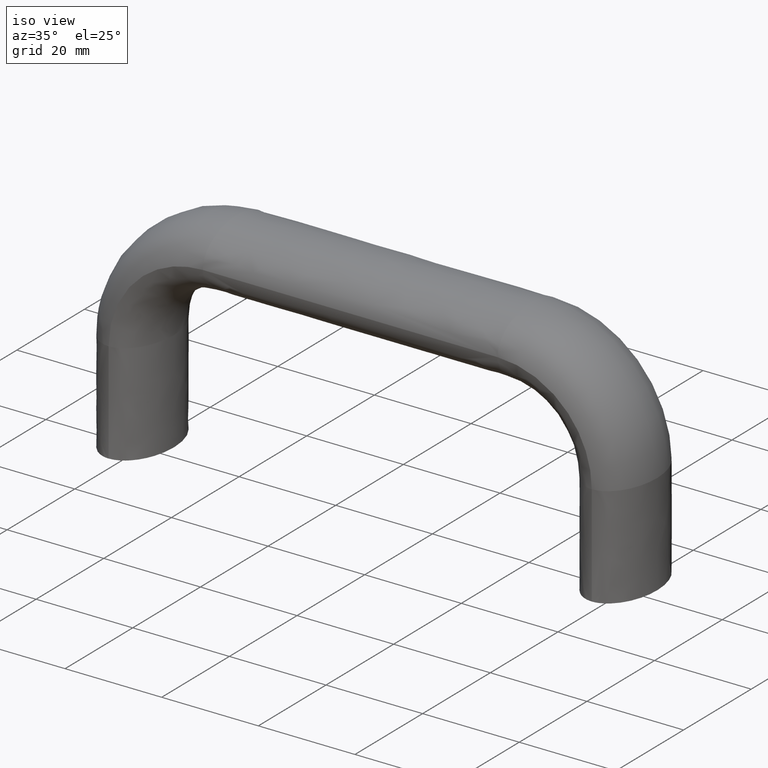
[diagram: clean part render]
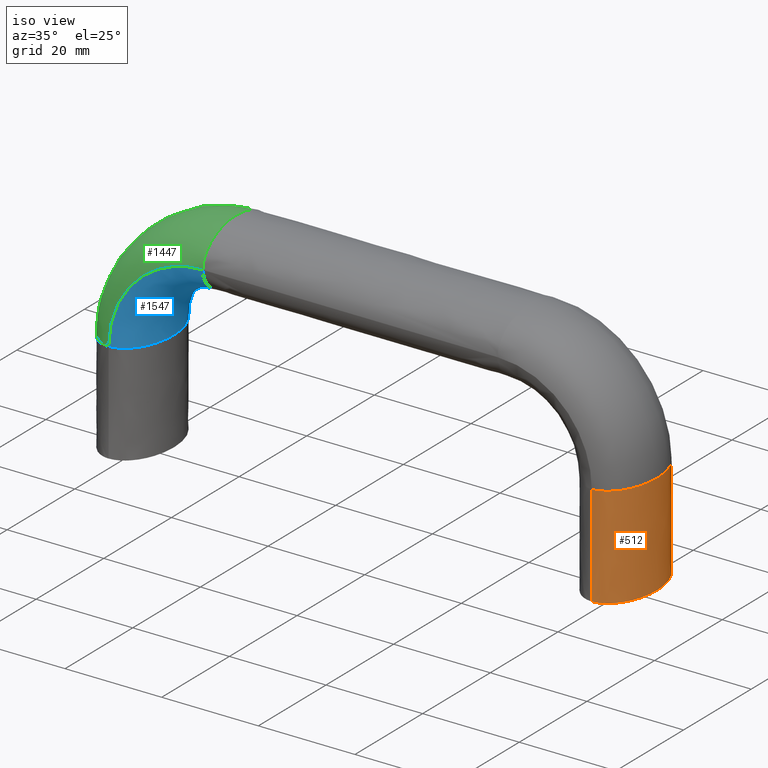
[diagram: same view with three faces highlighted in distinct colors, each labeled with its STEP entity id]
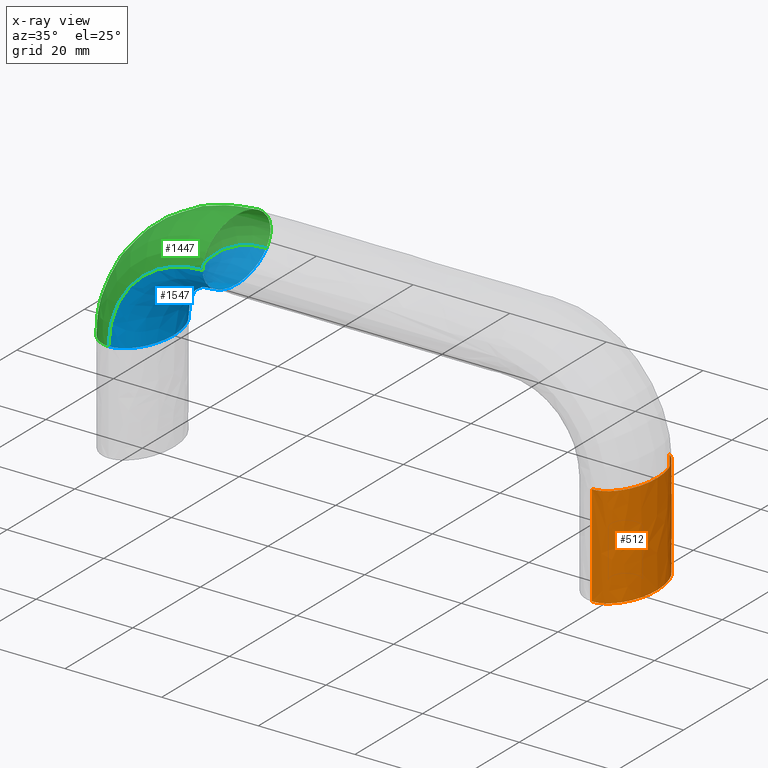
[diagram: x-ray of the same camera — body ghosted, the three highlighted faces saturated]
A machine part, iso view with three faces highlighted in distinct colors.
The next image is the same camera in x-ray (body ghosted, the three faces saturated) — at least one of them is partly hidden behind the body in this view.
Their STEP definitions:

[orange] entity #512 — the highlighted face is a freeform B-spline surface patch.
#416=CARTESIAN_POINT('',(102.685664287314590,9.096870563732855,21.105000702023069));
#417=CARTESIAN_POINT('',(103.393912250008300,8.602100189284771,21.105000702021730));
#418=CARTESIAN_POINT('',(104.046059659753990,7.917441528971150,21.105000702020519));
#419=CARTESIAN_POINT('',(105.799483026344600,5.219866576458202,21.105000702017371));
#420=CARTESIAN_POINT('',(106.500008461530400,2.617993877991495,21.105000702016159));
#421=CARTESIAN_POINT('',(106.500008461530400,-2.617993877991495,21.105000702016159));
#422=CARTESIAN_POINT('',(105.799483029704600,-5.219866585683334,21.105000702017371));
#423=CARTESIAN_POINT('',(103.372223946935310,-8.954109990528830,21.105000702021730));
#424=CARTESIAN_POINT('',(101.643380006030600,-10.036828661669171,21.105000702025009));
#425=CARTESIAN_POINT('',(99.912198060106107,-10.0,21.105000702028530));
#426=CARTESIAN_POINT('',(102.685762572474800,9.096870563732855,14.035000470713740));
#427=CARTESIAN_POINT('',(103.394012030205000,8.602100189284771,14.035000470805739));
#428=CARTESIAN_POINT('',(104.046160745582900,7.917441528971150,14.035000470888081));
#429=CARTESIAN_POINT('',(105.799587440925090,5.219866576458202,14.035000471102800));
#430=CARTESIAN_POINT('',(106.500114115188300,2.617993877991495,14.035000471185009));
#431=CARTESIAN_POINT('',(106.500114115188300,-2.617993877991495,14.035000471185009));
#432=CARTESIAN_POINT('',(105.799587444285090,-5.219866585683334,14.035000471102800));
#433=CARTESIAN_POINT('',(103.372323753533710,-8.954109990528833,14.035000470805560));
#434=CARTESIAN_POINT('',(101.643476196109010,-10.036828661669171,14.035000470581579));
#435=CARTESIAN_POINT('',(99.912290122131452,-10.0,14.035000470341419));
#436=CARTESIAN_POINT('',(102.685664754874200,9.096870563732855,6.965000230943952));
#437=CARTESIAN_POINT('',(103.393912724680110,8.602100189284771,6.965000230874455));
#438=CARTESIAN_POINT('',(104.046060140637000,7.917441528971148,6.965000230812259));
#439=CARTESIAN_POINT('',(105.799483523063100,5.219866576458202,6.965000230650062));
#440=CARTESIAN_POINT('',(106.500008964143400,2.617993877991495,6.965000230587966));
#441=CARTESIAN_POINT('',(106.500008964143400,-2.617993877991495,6.965000230587966));
#442=CARTESIAN_POINT('',(105.799483526423100,-5.219866585683334,6.965000230650062));
#443=CARTESIAN_POINT('',(103.372224421732800,-8.954109990528833,6.965000230874593));
#444=CARTESIAN_POINT('',(101.643380463623500,-10.036828661669171,6.965000231043766));
#445=CARTESIAN_POINT('',(99.912198498061215,-10.0,6.965000231225176));
#446=CARTESIAN_POINT('',(102.685665718488200,9.096870563732855,-0.105000001123976));
#447=CARTESIAN_POINT('',(103.393913702951810,8.602100189284771,-0.105000001122962));
#448=CARTESIAN_POINT('',(104.046061131709390,7.917441528971150,-0.105000001122055));
#449=CARTESIAN_POINT('',(105.799484546771500,5.219866576458202,-0.105000001119690));
#450=CARTESIAN_POINT('',(106.500010000000000,2.617993877991495,-0.105000001118785));
#451=CARTESIAN_POINT('',(106.500010000000000,-2.617993877991495,-0.105000001118785));
#452=CARTESIAN_POINT('',(105.799484550131500,-5.219866585683334,-0.105000001119690));
#453=CARTESIAN_POINT('',(103.372225400263300,-8.954109990528830,-0.105000001122964));
#454=CARTESIAN_POINT('',(101.643381406696700,-10.036828661669171,-0.105000001125431));
#455=CARTESIAN_POINT('',(99.912199400661862,-10.0,-0.105000001128076));
#456=B_SPLINE_SURFACE_WITH_KNOTS('',3,3,((#416,#426,#436,#446),(#417,#427,#437,#447),(#418,#428,#438,#448),(#419,#429,#439,#449),(#420,#430,#440,#450),(#421,#431,#441,#451),(#422,#432,#442,#452),(#423,#433,#443,#453),(#424,#434,#444,#454),(#425,#435,#445,#455)),.UNSPECIFIED.,.F.,.F.,.U.,(4,2,2,2,4),(4,4),(0.0,3.517538023977025,11.211160203697091,18.904782383417160,26.730734931155020),(0.0,21.210000706906950),.UNSPECIFIED.);
#457=CARTESIAN_POINT('',(102.765141615307000,9.039509780698342,21.0));
#458=VERTEX_POINT('',#457);
#459=CARTESIAN_POINT('',(100.000006999999900,-10.0,21.0));
#460=VERTEX_POINT('',#459);
#461=CARTESIAN_POINT('',(102.765141615307000,9.039509780698342,21.0));
#462=CARTESIAN_POINT('',(103.442845944197200,8.550386504931609,21.0));
#463=CARTESIAN_POINT('',(104.066757231072700,7.885599694327761,21.0));
#464=CARTESIAN_POINT('',(105.799484550144400,5.219866587632820,21.0));
#465=CARTESIAN_POINT('',(106.500010000000000,2.617993877991495,21.0));
#466=CARTESIAN_POINT('',(106.500010000000000,-2.617993877991495,21.0));
#467=CARTESIAN_POINT('',(105.799484550144400,-5.219866587632820,21.0));
#468=CARTESIAN_POINT('',(103.392921847921200,-8.922269036098131,21.0));
#469=CARTESIAN_POINT('',(101.701703806092600,-10.0,21.0));
#470=CARTESIAN_POINT('',(100.000006999999900,-10.0,21.0));
#471=B_SPLINE_CURVE_WITH_KNOTS('',3,(#461,#462,#463,#464,#465,#466,#467,#468,#469,#470),.UNSPECIFIED.,.F.,.U.,(4,2,2,2,4),(0.569999774214178,0.625000000000000,0.750000000000000,0.875000000000000,1.0),.UNSPECIFIED.);
#472=EDGE_CURVE('',#458,#460,#471,.T.);
#473=ORIENTED_EDGE('',*,*,#472,.T.);
#474=CARTESIAN_POINT('',(100.000006999999900,-10.0,2.244912E-030));
#475=VERTEX_POINT('',#474);
#476=CARTESIAN_POINT('',(100.000006999999900,-10.0,21.0));
#477=CARTESIAN_POINT('',(100.000096572231300,-10.0,14.000000002634369));
#478=CARTESIAN_POINT('',(100.000006999999900,-10.0,6.999999998021640));
#479=CARTESIAN_POINT('',(100.000006999999900,-10.0,9.022597E-030));
#480=B_SPLINE_CURVE_WITH_KNOTS('',3,(#476,#477,#478,#479),.UNSPECIFIED.,.F.,.U.,(4,4),(0.872154730273752,1.0),.UNSPECIFIED.);
#481=EDGE_CURVE('',#460,#475,#480,.T.);
#482=ORIENTED_EDGE('',*,*,#481,.T.);
#483=CARTESIAN_POINT('',(102.767739594506490,9.043088332074976,-6.905376E-016));
#484=VERTEX_POINT('',#483);
#485=CARTESIAN_POINT('',(102.767739594506490,9.043088332074976,-6.905376E-016));
#486=CARTESIAN_POINT('',(103.788922568860400,8.305512381048905,-8.662259E-016));
#487=CARTESIAN_POINT('',(104.593841249867590,7.067798396718776,-9.980209E-016));
#488=CARTESIAN_POINT('',(105.507974827157300,5.662145951503473,-1.147698E-015));
#489=CARTESIAN_POINT('',(106.003269452536700,3.824125051850070,-1.217831E-015));
#490=CARTESIAN_POINT('',(106.498190716571800,1.987489682987672,-1.287910E-015));
#491=CARTESIAN_POINT('',(106.498552664233500,-0.002017247322124,-1.267707E-015));
#492=CARTESIAN_POINT('',(106.498914339053000,-1.990024454081985,-1.247519E-015));
#493=CARTESIAN_POINT('',(106.004288505730600,-3.828133019815163,-1.140056E-015));
#494=CARTESIAN_POINT('',(105.510035529615290,-5.664855988638141,-1.032675E-015));
#495=CARTESIAN_POINT('',(104.595724214644310,-7.071730823092814,-8.543130E-016));
#496=CARTESIAN_POINT('',(103.682102122775700,-8.477545131857388,-6.760856E-016));
#497=CARTESIAN_POINT('',(102.487300935625400,-9.239002294893354,-4.539784E-016));
#498=CARTESIAN_POINT('',(101.293478468388900,-9.999835711236589,-2.320532E-016));
#499=CARTESIAN_POINT('',(100.000006999999900,-10.0,2.244912E-030));
#500=B_SPLINE_CURVE_WITH_KNOTS('',2,(#485,#486,#487,#488,#489,#490,#491,#492,#493,#494,#495,#496,#497,#498,#499),.UNSPECIFIED.,.F.,.U.,(3,2,2,2,2,2,2,3),(0.140017178578535,0.250000000000000,0.375000000000000,0.500000000000000,0.625000000000000,0.750000000000000,0.875000000000000,1.0),.UNSPECIFIED.);
#501=EDGE_CURVE('',#484,#475,#500,.T.);
#502=ORIENTED_EDGE('',*,*,#501,.F.);
#503=CARTESIAN_POINT('',(102.765141615307000,9.039509780698342,21.0));
#504=CARTESIAN_POINT('',(102.766103181637500,9.040702631156711,14.000000002996609));
#505=CARTESIAN_POINT('',(102.766873601440300,9.041895481616482,6.999999997749585));
#506=CARTESIAN_POINT('',(102.767739594506490,9.043088332074976,-6.905376E-016));
#507=B_SPLINE_CURVE_WITH_KNOTS('',3,(#503,#504,#505,#506),.UNSPECIFIED.,.F.,.U.,(4,4),(0.872154730273752,1.0),.UNSPECIFIED.);
#508=EDGE_CURVE('',#458,#484,#507,.T.);
#509=ORIENTED_EDGE('',*,*,#508,.F.);
#510=EDGE_LOOP('',(#473,#482,#502,#509));
#511=FACE_OUTER_BOUND('',#510,.T.);
#512=ADVANCED_FACE('',(#511),#456,.T.);

[blue] entity #1547 — the highlighted face is a freeform B-spline surface patch.
#1017=CARTESIAN_POINT('',(19.500000000000000,-10.0,40.499999999999972));
#1018=VERTEX_POINT('',#1017);
#1225=CARTESIAN_POINT('',(19.500000000000000,8.755444309278113,37.370781168316007));
#1226=VERTEX_POINT('',#1225);
#1227=CARTESIAN_POINT('',(19.500000000000000,-10.0,40.499999999999972));
#1228=CARTESIAN_POINT('',(19.500000000000000,-10.0,38.798303193907351));
#1229=CARTESIAN_POINT('',(19.500000000000000,-8.922269036098131,37.107085152078703));
#1230=CARTESIAN_POINT('',(19.500000000000000,-5.219866587632820,34.700522449855512));
#1231=CARTESIAN_POINT('',(19.500000000000000,-2.617993877991495,33.999997000000000));
#1232=CARTESIAN_POINT('',(19.500000000000000,2.617993877991495,33.999997000000000));
#1233=CARTESIAN_POINT('',(19.500000000000000,5.219866587632830,34.700522449855512));
#1234=CARTESIAN_POINT('',(19.500000000000000,7.737500252435607,36.336985087267422));
#1235=CARTESIAN_POINT('',(19.500000000000000,8.303690947313079,36.833402968655513));
#1236=CARTESIAN_POINT('',(19.500000000000000,8.755444309278113,37.370781168316007));
#1237=B_SPLINE_CURVE_WITH_KNOTS('',3,(#1227,#1228,#1229,#1230,#1231,#1232,#1233,#1234,#1235,#1236),.UNSPECIFIED.,.F.,.U.,(4,2,2,2,4),(0.0,0.125000000000000,0.250000000000000,0.375000000000000,0.419999999989627),.UNSPECIFIED.);
#1238=EDGE_CURVE('',#1018,#1226,#1237,.T.);
#1382=CARTESIAN_POINT('',(3.129218831684014,8.755444309278103,21.0));
#1383=VERTEX_POINT('',#1382);
#1384=CARTESIAN_POINT('',(3.129218831684014,8.755444309278103,21.0));
#1385=CARTESIAN_POINT('',(3.129243969506073,8.755444309434322,23.143280582164650));
#1386=CARTESIAN_POINT('',(3.555306488633653,8.755444309434322,25.285017438706689));
#1387=CARTESIAN_POINT('',(5.195434205766314,8.755444309434322,29.244636017413409));
#1388=CARTESIAN_POINT('',(6.408829193870410,8.755444309434322,31.060609949007048));
#1389=CARTESIAN_POINT('',(9.439390050992317,8.755444309434322,34.091170806130329));
#1390=CARTESIAN_POINT('',(11.255363982501500,8.755444309434322,35.304565794201046));
#1391=CARTESIAN_POINT('',(15.214982561378440,8.755444309434322,36.944693511399016));
#1392=CARTESIAN_POINT('',(17.356769465586289,8.755444309434322,37.361453043967067));
#1393=CARTESIAN_POINT('',(19.500000000000000,8.755444309278113,37.370781168316007));
#1394=B_SPLINE_CURVE_WITH_KNOTS('',3,(#1384,#1385,#1386,#1387,#1388,#1389,#1390,#1391,#1392,#1393),.UNSPECIFIED.,.F.,.U.,(4,2,2,2,4),(0.127845269726248,0.174463938317198,0.221082606908148,0.267701275499098,0.314319944090048),.UNSPECIFIED.);
#1395=EDGE_CURVE('',#1383,#1226,#1394,.T.);
#1415=CARTESIAN_POINT('',(3.747003E-014,-10.0,21.0));
#1416=VERTEX_POINT('',#1415);
#1430=CARTESIAN_POINT('',(4.996004E-014,-10.0,21.0));
#1431=CARTESIAN_POINT('',(0.000032792768325,-10.0,23.552961332610170));
#1432=CARTESIAN_POINT('',(0.507532855557295,-10.0,26.104083867147921));
#1433=CARTESIAN_POINT('',(2.461165376502601,-10.0,30.820569995090551));
#1434=CARTESIAN_POINT('',(3.906496666715043,-10.0,32.983661132990903));
#1435=CARTESIAN_POINT('',(7.516338867009705,-10.0,36.593503333284453));
#1436=CARTESIAN_POINT('',(9.679430004809840,-10.0,38.038834623457852));
#1437=CARTESIAN_POINT('',(14.395916132951729,-10.0,39.992467144482312));
#1438=CARTESIAN_POINT('',(16.947090050484519,-10.0,40.489775046380082));
#1439=CARTESIAN_POINT('',(19.500000000000000,-10.0,40.499999999999972));
#1440=B_SPLINE_CURVE_WITH_KNOTS('',3,(#1430,#1431,#1432,#1433,#1434,#1435,#1436,#1437,#1438,#1439),.UNSPECIFIED.,.F.,.U.,(4,2,2,2,4),(0.127845269726248,0.174463938317198,0.221082606908148,0.267701275499098,0.314319944090048),.UNSPECIFIED.);
#1441=EDGE_CURVE('',#1416,#1018,#1440,.T.);
#1448=CARTESIAN_POINT('',(-0.085767497650776,-10.0,20.846146436485959));
#1449=CARTESIAN_POINT('',(1.644732336006773,-10.035978100608860,20.859740162192551));
#1450=CARTESIAN_POINT('',(3.372698253159192,-8.953369468538748,20.873313983146410));
#1451=CARTESIAN_POINT('',(5.799476411370937,-5.219866585898124,20.892377236740099));
#1452=CARTESIAN_POINT('',(6.500001952613808,-2.617993877991495,20.897880127925092));
#1453=CARTESIAN_POINT('',(6.500001952613808,2.617993877991495,20.897880127925092));
#1454=CARTESIAN_POINT('',(5.799476406080711,5.219866572629823,20.892377236698749));
#1455=CARTESIAN_POINT('',(4.142798954994253,7.768601939193506,20.879363413302151));
#1456=CARTESIAN_POINT('',(3.620113162972910,8.356282155929316,20.875257520172660));
#1457=CARTESIAN_POINT('',(3.053984366400128,8.818689778524117,20.870810365946390));
#1458=CARTESIAN_POINT('',(-0.105954529843090,-10.0,23.461386517961859));
#1459=CARTESIAN_POINT('',(1.626327533426559,-10.035978100608860,23.243910806445211));
#1460=CARTESIAN_POINT('',(3.356073275493545,-8.953369468538748,23.026753535988941));
#1461=CARTESIAN_POINT('',(5.785351324650482,-5.219866585898124,22.721774994549978));
#1462=CARTESIAN_POINT('',(6.486598566360367,-2.617993877991495,22.633738410504080));
#1463=CARTESIAN_POINT('',(6.486598566360724,2.617993877991495,22.633738410504911));
#1464=CARTESIAN_POINT('',(5.785351319355358,5.219866572629824,22.721774995214219));
#1465=CARTESIAN_POINT('',(4.126967279248219,7.768601939193507,22.929973289303138));
#1466=CARTESIAN_POINT('',(3.603743081728719,8.356282155929316,22.995660360600070));
#1467=CARTESIAN_POINT('',(3.037031155426073,8.818689778524117,23.066807009458749));
#1468=CARTESIAN_POINT('',(0.904837241302363,-10.0,28.646528988361499));
#1469=CARTESIAN_POINT('',(2.547812648169906,-10.035978100608860,27.970920208124401));
#1470=CARTESIAN_POINT('',(4.188382235813213,-8.953369468538751,27.296300695687052));
#1471=CARTESIAN_POINT('',(6.492419749391019,-5.219866585898124,26.348856134852390));
#1472=CARTESIAN_POINT('',(7.157514360338914,-2.617993877991494,26.075362195743889));
#1473=CARTESIAN_POINT('',(7.157514360337174,2.617993877991494,26.075362195739778));
#1474=CARTESIAN_POINT('',(6.492419744367680,5.219866572629822,26.348856136914989));
#1475=CARTESIAN_POINT('',(4.919533082978546,7.768601939193506,26.995643744910240));
#1476=CARTESIAN_POINT('',(4.423283481938253,8.356282155929318,27.199706818168188));
#1477=CARTESIAN_POINT('',(3.885788111436856,8.818689778524119,27.420730583374230));
#1478=CARTESIAN_POINT('',(5.290331307233657,-9.999999999999996,35.209805945833217));
#1479=CARTESIAN_POINT('',(6.545825946293057,-10.035978100608860,33.954299078660107));
#1480=CARTESIAN_POINT('',(7.799482228133384,-8.953369468538748,32.700630601471381));
#1481=CARTESIAN_POINT('',(9.560133702599279,-5.219866585898124,30.939962020086579));
#1482=CARTESIAN_POINT('',(10.068371896046150,-2.617993877991495,30.431718893538140));
#1483=CARTESIAN_POINT('',(10.068371896045960,2.617993877991495,30.431718893542129));
#1484=CARTESIAN_POINT('',(9.560133698760282,5.219866572629823,30.939962023929780));
#1485=CARTESIAN_POINT('',(8.358197878175051,7.768601939193506,32.141909522815510));
#1486=CARTESIAN_POINT('',(7.978984187201655,8.356282155929318,32.521126900315473));
#1487=CARTESIAN_POINT('',(7.568252171456820,8.818689778524117,32.931862910827277));
#1488=CARTESIAN_POINT('',(9.636379464746863,-10.0,38.113917964908083));
#1489=CARTESIAN_POINT('',(10.507879284332230,-10.035978100608860,36.601818389966184));
#1490=CARTESIAN_POINT('',(11.378103000540801,-8.953369468538748,35.091932923764368));
#1491=CARTESIAN_POINT('',(12.600256690901791,-5.219866585898124,32.971429816159279));
#1492=CARTESIAN_POINT('',(12.953049498859210,-2.617993877991495,32.359315111176258));
#1493=CARTESIAN_POINT('',(12.953049498860979,2.617993877991495,32.359315111170083));
#1494=CARTESIAN_POINT('',(12.600256688240350,5.219866572629823,32.971429820773388));
#1495=CARTESIAN_POINT('',(11.765934665959451,7.768601939193506,34.419023895842983));
#1496=CARTESIAN_POINT('',(11.502704026039719,8.356282155929316,34.875743369318961));
#1497=CARTESIAN_POINT('',(11.217594984891930,8.818689778524117,35.370423058568150));
#1498=CARTESIAN_POINT('',(14.420927063298050,-10.0,40.095658331737582));
#1499=CARTESIAN_POINT('',(14.869688360654621,-10.035978100608860,38.408462161148179));
#1500=CARTESIAN_POINT('',(15.317792554254090,-8.953369468538748,36.723736486519172));
#1501=CARTESIAN_POINT('',(15.947116007145629,-5.219866585898124,34.357685479094883));
#1502=CARTESIAN_POINT('',(16.128779565345329,-2.617993877991495,33.674689727225342));
#1503=CARTESIAN_POINT('',(16.128779565345312,2.617993877991495,33.674689727234387));
#1504=CARTESIAN_POINT('',(15.947116005771440,5.219866572629823,34.357685484261758));
#1505=CARTESIAN_POINT('',(15.517498667114610,7.768601939193506,35.972906611440763));
#1506=CARTESIAN_POINT('',(15.381953345337740,8.356282155929316,36.482512830107730));
#1507=CARTESIAN_POINT('',(15.235142181045861,8.818689778524119,37.034474943687350));
#1508=CARTESIAN_POINT('',(17.038627739993871,-9.999999999999998,40.595330939088150));
#1509=CARTESIAN_POINT('',(17.256106376689580,-10.035978100608860,38.863518847138081));
#1510=CARTESIAN_POINT('',(17.473266200352480,-8.953369468538748,37.134311256048470));
#1511=CARTESIAN_POINT('',(17.778247740570979,-5.219866585898124,34.705883517520981));
#1512=CARTESIAN_POINT('',(17.866285030148291,-2.617993877991495,34.004905194642490));
#1513=CARTESIAN_POINT('',(17.866285030148191,2.617993877991495,34.004905194649517));
#1514=CARTESIAN_POINT('',(17.778247739907940,5.219866572629823,34.705883522815441));
#1515=CARTESIAN_POINT('',(17.570047398657358,7.768601939193506,36.363687085184878));
#1516=CARTESIAN_POINT('',(17.504359624064449,8.356282155929316,36.886737385876252));
#1517=CARTESIAN_POINT('',(17.433212163674408,8.818689778524117,37.453269467825493));
#1518=CARTESIAN_POINT('',(19.654137343829749,-10.0,40.586381532435631));
#1519=CARTESIAN_POINT('',(19.640518302920540,-10.035978100608860,38.855854535481193));
#1520=CARTESIAN_POINT('',(19.626919225077739,-8.953369468538748,37.127857514206362));
#1521=CARTESIAN_POINT('',(19.607820534291029,-5.219866585898124,34.701030209395711));
#1522=CARTESIAN_POINT('',(19.602307422885499,-2.617993877991495,34.000489125022057));
#1523=CARTESIAN_POINT('',(19.602307422885499,2.617993877991495,34.000489125021637));
#1524=CARTESIAN_POINT('',(19.607820534332561,5.219866572629823,34.701030214685993));
#1525=CARTESIAN_POINT('',(19.620858549474001,7.768601939193506,36.357741216460333));
#1526=CARTESIAN_POINT('',(19.624972078475519,8.356282155929316,36.880437059421041));
#1527=CARTESIAN_POINT('',(19.629427506105291,8.818689778524117,37.446576250670539));
#1528=B_SPLINE_SURFACE_WITH_KNOTS('',3,3,((#1448,#1458,#1468,#1478,#1488,#1498,#1508,#1518),(#1449,#1459,#1469,#1479,#1489,#1499,#1509,#1519),(#1450,#1460,#1470,#1480,#1490,#1500,#1510,#1520),(#1451,#1461,#1471,#1481,#1491,#1501,#1511,#1521),(#1452,#1462,#1472,#1482,#1492,#1502,#1512,#1522),(#1453,#1463,#1473,#1483,#1493,#1503,#1513,#1523),(#1454,#1464,#1474,#1484,#1494,#1504,#1514,#1524),(#1455,#1465,#1475,#1485,#1495,#1505,#1515,#1525),(#1456,#1466,#1476,#1486,#1496,#1506,#1516,#1526),(#1457,#1467,#1477,#1487,#1497,#1507,#1517,#1527)),.UNSPECIFIED.,.F.,.F.,.U.,(4,2,2,2,4),(4,1,1,2,4),(0.0,7.822887350544536,15.516521647786030,23.210155945027509,26.109117345018252),(0.0,7.846287878494902,15.538724845054020,23.231161811613141,31.077736555839738),.UNSPECIFIED.);
#1529=ORIENTED_EDGE('',*,*,#1238,.F.);
#1530=ORIENTED_EDGE('',*,*,#1441,.F.);
#1531=CARTESIAN_POINT('',(0.0,-10.0,21.0));
#1532=CARTESIAN_POINT('',(1.701696806092625,-10.0,21.0));
#1533=CARTESIAN_POINT('',(3.392914847921295,-8.922269036098131,21.0));
#1534=CARTESIAN_POINT('',(5.799477550144460,-5.219866587632820,21.0));
#1535=CARTESIAN_POINT('',(6.500003000000000,-2.617993877991495,21.0));
#1536=CARTESIAN_POINT('',(6.500003000000000,2.617993877991495,21.0));
#1537=CARTESIAN_POINT('',(5.799477550144460,5.219866587632830,21.0));
#1538=CARTESIAN_POINT('',(4.163014912732571,7.737500252435594,21.0));
#1539=CARTESIAN_POINT('',(3.666597031344490,8.303690947313058,21.0));
#1540=CARTESIAN_POINT('',(3.129218831684014,8.755444309278103,21.0));
#1541=B_SPLINE_CURVE_WITH_KNOTS('',3,(#1531,#1532,#1533,#1534,#1535,#1536,#1537,#1538,#1539,#1540),.UNSPECIFIED.,.F.,.U.,(4,2,2,2,4),(0.0,0.125000000000000,0.250000000000000,0.375000000000000,0.419999999989626),.UNSPECIFIED.);
#1542=EDGE_CURVE('',#1416,#1383,#1541,.T.);
#1543=ORIENTED_EDGE('',*,*,#1542,.T.);
#1544=ORIENTED_EDGE('',*,*,#1395,.T.);
#1545=EDGE_LOOP('',(#1529,#1530,#1543,#1544));
#1546=FACE_OUTER_BOUND('',#1545,.T.);
#1547=ADVANCED_FACE('',(#1546),#1528,.T.);

[green] entity #1447 — the highlighted face is a freeform B-spline surface patch.
#998=CARTESIAN_POINT('',(19.500000000000000,9.039509780698342,43.265134615307048));
#999=VERTEX_POINT('',#998);
#1017=CARTESIAN_POINT('',(19.500000000000000,-10.0,40.499999999999972));
#1018=VERTEX_POINT('',#1017);
#1019=CARTESIAN_POINT('',(19.500000000000000,9.039509780698342,43.265134615307048));
#1020=CARTESIAN_POINT('',(19.500000000000000,8.550386504931609,43.942838944197263));
#1021=CARTESIAN_POINT('',(19.500000000000000,7.885599694327761,44.566750231072788));
#1022=CARTESIAN_POINT('',(19.500000000000000,5.219866587632820,46.299477550144402));
#1023=CARTESIAN_POINT('',(19.500000000000000,2.617993877991495,47.000002999999893));
#1024=CARTESIAN_POINT('',(19.500000000000000,-2.617993877991495,47.000002999999893));
#1025=CARTESIAN_POINT('',(19.500000000000000,-5.219866587632820,46.299477550144402));
#1026=CARTESIAN_POINT('',(19.500000000000000,-8.922269036098131,43.892914847921247));
#1027=CARTESIAN_POINT('',(19.500000000000000,-10.0,42.201696806092599));
#1028=CARTESIAN_POINT('',(19.500000000000000,-10.0,40.499999999999972));
#1029=B_SPLINE_CURVE_WITH_KNOTS('',3,(#1019,#1020,#1021,#1022,#1023,#1024,#1025,#1026,#1027,#1028),.UNSPECIFIED.,.F.,.U.,(4,2,2,2,4),(0.569999774214178,0.625000000000000,0.750000000000000,0.875000000000000,1.0),.UNSPECIFIED.);
#1030=EDGE_CURVE('',#999,#1018,#1029,.T.);
#1225=CARTESIAN_POINT('',(19.500000000000000,8.755444309278113,37.370781168316007));
#1226=VERTEX_POINT('',#1225);
#1240=CARTESIAN_POINT('',(19.500000000000000,10.0,40.499999999999972));
#1241=VERTEX_POINT('',#1240);
#1242=CARTESIAN_POINT('',(19.500000000000000,8.755444309278113,37.370781168316007));
#1243=CARTESIAN_POINT('',(19.500000000000000,9.558561397071312,38.326120189762612));
#1244=CARTESIAN_POINT('',(19.500000000000000,10.0,39.410914043959473));
#1245=CARTESIAN_POINT('',(19.500000000000000,10.0,40.499999999999972));
#1246=B_SPLINE_CURVE_WITH_KNOTS('',3,(#1242,#1243,#1244,#1245),.UNSPECIFIED.,.F.,.U.,(4,4),(0.419999999989627,0.500000000000000),.UNSPECIFIED.);
#1247=EDGE_CURVE('',#1226,#1241,#1246,.T.);
#1249=CARTESIAN_POINT('',(19.500000000000000,10.0,40.499999999999972));
#1250=CARTESIAN_POINT('',(19.500000000000000,10.0,41.452947137659748));
#1251=CARTESIAN_POINT('',(19.500000000000000,9.662025750010745,42.402608156045282));
#1252=CARTESIAN_POINT('',(19.500000000000000,9.039509780698342,43.265134615307048));
#1253=B_SPLINE_CURVE_WITH_KNOTS('',3,(#1249,#1250,#1251,#1252),.UNSPECIFIED.,.F.,.U.,(4,4),(0.500000000000000,0.569999774214178),.UNSPECIFIED.);
#1254=EDGE_CURVE('',#1241,#999,#1253,.T.);
#1260=CARTESIAN_POINT('',(3.129218831498210,8.755444309434322,21.0));
#1261=CARTESIAN_POINT('',(2.173879809956092,9.558561397185795,21.0));
#1262=CARTESIAN_POINT('',(1.089085955899330,10.0,21.0));
#1263=CARTESIAN_POINT('',(-1.701696806092575,10.0,21.0));
#1264=CARTESIAN_POINT('',(-3.392914847921245,8.922269036098131,21.0));
#1265=CARTESIAN_POINT('',(-5.799477550144410,5.219866587632820,21.0));
#1266=CARTESIAN_POINT('',(-6.500002999999921,2.617993877991495,21.0));
#1267=CARTESIAN_POINT('',(-6.500002999999921,-2.617993877991495,21.0));
#1268=CARTESIAN_POINT('',(-5.799477550144410,-5.219866587632820,21.0));
#1269=CARTESIAN_POINT('',(-3.392914847921240,-8.922269036098131,21.0));
#1270=CARTESIAN_POINT('',(-1.701696806092575,-10.0,21.0));
#1271=CARTESIAN_POINT('',(4.998172E-014,-10.0,21.0));
#1272=CARTESIAN_POINT('',(3.129243969506073,8.755444309434322,23.143280582164650));
#1273=CARTESIAN_POINT('',(2.173907216333944,9.558561397185795,23.268354611356660));
#1274=CARTESIAN_POINT('',(1.089116008403330,10.0,23.410377008688489));
#1275=CARTESIAN_POINT('',(-1.701659731661370,10.0,23.775749338729302));
#1276=CARTESIAN_POINT('',(-3.392873347297845,8.922269036098131,23.997165453416450));
#1277=CARTESIAN_POINT('',(-5.799429588309250,5.219866587632820,24.312235272812948));
#1278=CARTESIAN_POINT('',(-6.499953125219970,2.617993877991495,24.403948830367550));
#1279=CARTESIAN_POINT('',(-6.499953125219970,-2.617993877991495,24.403948830367550));
#1280=CARTESIAN_POINT('',(-5.799429588309250,-5.219866587632820,24.312235272816299));
#1281=CARTESIAN_POINT('',(-3.392873347297845,-8.922269036098131,23.997165453416450));
#1282=CARTESIAN_POINT('',(-1.701659731661370,-10.0,23.775749338732599));
#1283=CARTESIAN_POINT('',(0.000032792768325,-10.0,23.552961332610170));
#1284=CARTESIAN_POINT('',(3.555306488633653,8.755444309434322,25.285017438706689));
#1285=CARTESIAN_POINT('',(2.624832387175422,9.558561397185795,25.535075412426149));
#1286=CARTESIAN_POINT('',(1.568272816321458,10.0,25.819017915488541));
#1287=CARTESIAN_POINT('',(-1.149873333135300,10.0,26.549499416627050));
#1288=CARTESIAN_POINT('',(-2.797073491776695,8.922269036098131,26.992172171655849));
#1289=CARTESIAN_POINT('',(-5.140999802187189,5.219866587632820,27.622084882618751));
#1290=CARTESIAN_POINT('',(-5.823292447839340,2.617993877991495,27.805445941444251));
#1291=CARTESIAN_POINT('',(-5.823292447839340,-2.617993877991495,27.805445941444251));
#1292=CARTESIAN_POINT('',(-5.140999802187189,-5.219866587632820,27.622084882614299));
#1293=CARTESIAN_POINT('',(-2.797073491777245,-8.922269036098131,26.992172171655849));
#1294=CARTESIAN_POINT('',(-1.149873333135296,-10.0,26.549499416622648));
#1295=CARTESIAN_POINT('',(0.507532855557295,-10.0,26.104083867147921));
#1296=CARTESIAN_POINT('',(5.195434205766314,8.755444309434322,29.244636017413409));
#1297=CARTESIAN_POINT('',(4.360671970000300,9.558561397185795,29.725762875366030));
#1298=CARTESIAN_POINT('',(3.412793863340103,10.0,30.272085643261619));
#1299=CARTESIAN_POINT('',(0.974245865817578,10.0,31.677576794811859));
#1300=CARTESIAN_POINT('',(-0.503517443259672,8.922269036098131,32.529306290032594));
#1301=CARTESIAN_POINT('',(-2.606339181427260,5.219866587632820,33.741296929246850));
#1302=CARTESIAN_POINT('',(-3.218448786024635,2.617993877991495,34.094094837640952));
#1303=CARTESIAN_POINT('',(-3.218448786024635,-2.617993877991495,34.094094837640952));
#1304=CARTESIAN_POINT('',(-2.606339181427260,-5.219866587632820,33.741296929251313));
#1305=CARTESIAN_POINT('',(-0.503517443259118,-8.922269036098131,32.529306290032594));
#1306=CARTESIAN_POINT('',(0.974245865817580,-10.0,31.677576794816300));
#1307=CARTESIAN_POINT('',(2.461165376502601,-10.0,30.820569995090551));
#1308=CARTESIAN_POINT('',(6.408829193870410,8.755444309434322,31.060609949007041));
#1309=CARTESIAN_POINT('',(5.644876259674172,9.558561397185795,31.647710415739681));
#1310=CARTESIAN_POINT('',(4.777402588948450,10.0,32.314366925800918));
#1311=CARTESIAN_POINT('',(2.545706163226765,10.0,34.029433331725251));
#1312=CARTESIAN_POINT('',(1.193295180017906,8.922269036098131,35.068765840203852));
#1313=CARTESIAN_POINT('',(-0.731153205563699,5.219866587632820,36.547711066804197));
#1314=CARTESIAN_POINT('',(-1.291340176712330,2.617993877991495,36.978216687630962));
#1315=CARTESIAN_POINT('',(-1.291340176712330,-2.617993877991495,36.978216687630962));
#1316=CARTESIAN_POINT('',(-0.731153205564807,-5.219866587632820,36.547711066804197));
#1317=CARTESIAN_POINT('',(1.193295180018460,-8.922269036098131,35.068765840203852));
#1318=CARTESIAN_POINT('',(2.545706163225655,-10.0,34.029433331725251));
#1319=CARTESIAN_POINT('',(3.906496666715043,-10.0,32.983661132990903));
#1320=CARTESIAN_POINT('',(9.439390050992316,8.755444309434322,34.091170806130329));
#1321=CARTESIAN_POINT('',(8.852289584259452,9.558561397185795,34.855123740326782));
#1322=CARTESIAN_POINT('',(8.185633074199123,10.0,35.722597411051588));
#1323=CARTESIAN_POINT('',(6.470566668274819,10.0,37.954293836773303));
#1324=CARTESIAN_POINT('',(5.431234159799510,8.922269036098131,39.306704819978847));
#1325=CARTESIAN_POINT('',(3.952288933195870,5.219866587632820,41.231153205563750));
#1326=CARTESIAN_POINT('',(3.521783312371335,2.617993877991495,41.791340176710200));
#1327=CARTESIAN_POINT('',(3.521783312371335,-2.617993877991495,41.791340176710200));
#1328=CARTESIAN_POINT('',(3.952288933196975,-5.219866587632820,41.231153205563750));
#1329=CARTESIAN_POINT('',(5.431234159798961,-8.922269036098131,39.306704819978812));
#1330=CARTESIAN_POINT('',(6.470566668275930,-10.0,37.954293836773303));
#1331=CARTESIAN_POINT('',(7.516338867009705,-10.0,36.593503333284453));
#1332=CARTESIAN_POINT('',(11.255363982501500,8.755444309434322,35.304565794201046));
#1333=CARTESIAN_POINT('',(10.774237124543060,9.558561397185795,36.139328029965739));
#1334=CARTESIAN_POINT('',(10.227914356639980,10.0,37.087206136625802));
#1335=CARTESIAN_POINT('',(8.822423205075241,10.0,39.525754134144250));
#1336=CARTESIAN_POINT('',(7.970693709847879,8.922269036098131,41.003517443214847));
#1337=CARTESIAN_POINT('',(6.758703070618110,5.219866587632820,43.106339181378551));
#1338=CARTESIAN_POINT('',(6.405905162224030,2.617993877991495,43.718448785975951));
#1339=CARTESIAN_POINT('',(6.405905162224030,-2.617993877991495,43.718448785975951));
#1340=CARTESIAN_POINT('',(6.758703070618110,-5.219866587632820,43.106339181378551));
#1341=CARTESIAN_POINT('',(7.970693709847879,-8.922269036098131,41.003517443214847));
#1342=CARTESIAN_POINT('',(8.822423205075241,-10.0,39.525754134135397));
#1343=CARTESIAN_POINT('',(9.679430004809840,-10.0,38.038834623457852));
#1344=CARTESIAN_POINT('',(15.214982561378440,8.755444309434322,36.944693511399016));
#1345=CARTESIAN_POINT('',(14.964924587664800,9.558561397185795,37.875167612858583));
#1346=CARTESIAN_POINT('',(14.680982084609891,10.0,38.931727183712667));
#1347=CARTESIAN_POINT('',(13.950500583485860,10.0,41.649873333173502));
#1348=CARTESIAN_POINT('',(13.507827828463700,8.922269036098131,43.297073491821550));
#1349=CARTESIAN_POINT('',(12.877915117516340,5.219866587632820,45.640999802235903));
#1350=CARTESIAN_POINT('',(12.694554058690819,2.617993877991495,46.323292447888100));
#1351=CARTESIAN_POINT('',(12.694554058690819,-2.617993877991495,46.323292447888100));
#1352=CARTESIAN_POINT('',(12.877915117516340,-5.219866587632820,45.640999802235903));
#1353=CARTESIAN_POINT('',(13.507827828463700,-8.922269036098131,43.297073491821550));
#1354=CARTESIAN_POINT('',(13.950500583485860,-10.0,41.649873333182363));
#1355=CARTESIAN_POINT('',(14.395916132951729,-10.0,39.992467144482312));
#1356=CARTESIAN_POINT('',(17.356769465586289,8.755444309434322,37.361453043967067));
#1357=CARTESIAN_POINT('',(17.231695965495000,9.558561397185795,38.316496932394571));
#1358=CARTESIAN_POINT('',(17.089674040141929,10.0,39.400977547810747));
#1359=CARTESIAN_POINT('',(16.724302566644699,10.0,42.191021137917247));
#1360=CARTESIAN_POINT('',(16.502886723067000,8.922269036098131,43.881844388946199));
#1361=CARTESIAN_POINT('',(16.187817088518599,5.219866587632820,46.287895959147200));
#1362=CARTESIAN_POINT('',(16.096103549132099,2.617993877991495,46.988282623263103));
#1363=CARTESIAN_POINT('',(16.096103549132099,-2.617993877991495,46.988282623263103));
#1364=CARTESIAN_POINT('',(16.187817088518599,-5.219866587632820,46.287895959147200));
#1365=CARTESIAN_POINT('',(16.502886723067000,-8.922269036098131,43.881844388946199));
#1366=CARTESIAN_POINT('',(16.724302566644749,-10.0,42.191021137908052));
#1367=CARTESIAN_POINT('',(16.947090050484519,-10.0,40.489775046380082));
#1368=CARTESIAN_POINT('',(19.500000000000000,8.755444309434322,37.370781168501821));
#1369=CARTESIAN_POINT('',(19.500000000000000,9.558561397185795,38.326120190043937));
#1370=CARTESIAN_POINT('',(19.500000000000000,10.0,39.410914044100693));
#1371=CARTESIAN_POINT('',(19.500000000000000,10.0,42.201696806092599));
#1372=CARTESIAN_POINT('',(19.500000000000000,8.922269036098131,43.892914847921247));
#1373=CARTESIAN_POINT('',(19.500000000000000,5.219866587632820,46.299477550144402));
#1374=CARTESIAN_POINT('',(19.500000000000000,2.617993877991495,47.000002999999893));
#1375=CARTESIAN_POINT('',(19.500000000000000,-2.617993877991495,47.000002999999893));
#1376=CARTESIAN_POINT('',(19.500000000000000,-5.219866587632820,46.299477550144402));
#1377=CARTESIAN_POINT('',(19.500000000000000,-8.922269036098131,43.892914847921247));
#1378=CARTESIAN_POINT('',(19.500000000000000,-10.0,42.201696806092599));
#1379=CARTESIAN_POINT('',(19.500000000000000,-10.0,40.499999999999972));
#1380=B_SPLINE_SURFACE_WITH_KNOTS('',3,3,((#1260,#1272,#1284,#1296,#1308,#1320,#1332,#1344,#1356,#1368),(#1261,#1273,#1285,#1297,#1309,#1321,#1333,#1345,#1357,#1369),(#1262,#1274,#1286,#1298,#1310,#1322,#1334,#1346,#1358,#1370),(#1263,#1275,#1287,#1299,#1311,#1323,#1335,#1347,#1359,#1371),(#1264,#1276,#1288,#1300,#1312,#1324,#1336,#1348,#1360,#1372),(#1265,#1277,#1289,#1301,#1313,#1325,#1337,#1349,#1361,#1373),(#1266,#1278,#1290,#1302,#1314,#1326,#1338,#1350,#1362,#1374),(#1267,#1279,#1291,#1303,#1315,#1327,#1339,#1351,#1363,#1375),(#1268,#1280,#1292,#1304,#1316,#1328,#1340,#1352,#1364,#1376),(#1269,#1281,#1293,#1305,#1317,#1329,#1341,#1353,#1365,#1377),(#1270,#1282,#1294,#1306,#1318,#1330,#1342,#1354,#1366,#1378),(#1271,#1283,#1295,#1307,#1319,#1331,#1343,#1355,#1367,#1379)),.UNSPECIFIED.,.F.,.F.,.U.,(4,2,2,2,2,4),(4,2,2,2,4),(0.0,4.923917928726865,12.617539692362589,20.311161455998310,28.004783219634039,35.698404983269761),(0.0,10.123009846341439,20.246019692682790,30.369029539024151,40.492039385365523),.UNSPECIFIED.);
#1381=ORIENTED_EDGE('',*,*,#1247,.F.);
#1382=CARTESIAN_POINT('',(3.129218831684014,8.755444309278103,21.0));
#1383=VERTEX_POINT('',#1382);
#1384=CARTESIAN_POINT('',(3.129218831684014,8.755444309278103,21.0));
#1385=CARTESIAN_POINT('',(3.129243969506073,8.755444309434322,23.143280582164650));
#1386=CARTESIAN_POINT('',(3.555306488633653,8.755444309434322,25.285017438706689));
#1387=CARTESIAN_POINT('',(5.195434205766314,8.755444309434322,29.244636017413409));
#1388=CARTESIAN_POINT('',(6.408829193870410,8.755444309434322,31.060609949007048));
#1389=CARTESIAN_POINT('',(9.439390050992317,8.755444309434322,34.091170806130329));
#1390=CARTESIAN_POINT('',(11.255363982501500,8.755444309434322,35.304565794201046));
#1391=CARTESIAN_POINT('',(15.214982561378440,8.755444309434322,36.944693511399016));
#1392=CARTESIAN_POINT('',(17.356769465586289,8.755444309434322,37.361453043967067));
#1393=CARTESIAN_POINT('',(19.500000000000000,8.755444309278113,37.370781168316007));
#1394=B_SPLINE_CURVE_WITH_KNOTS('',3,(#1384,#1385,#1386,#1387,#1388,#1389,#1390,#1391,#1392,#1393),.UNSPECIFIED.,.F.,.U.,(4,2,2,2,4),(0.127845269726248,0.174463938317198,0.221082606908148,0.267701275499098,0.314319944090048),.UNSPECIFIED.);
#1395=EDGE_CURVE('',#1383,#1226,#1394,.T.);
#1396=ORIENTED_EDGE('',*,*,#1395,.F.);
#1397=CARTESIAN_POINT('',(0.0,10.0,21.0));
#1398=VERTEX_POINT('',#1397);
#1399=CARTESIAN_POINT('',(3.129218831684014,8.755444309278103,21.0));
#1400=CARTESIAN_POINT('',(2.173879810237389,9.558561397071305,21.0));
#1401=CARTESIAN_POINT('',(1.089085956040510,10.0,21.0));
#1402=CARTESIAN_POINT('',(0.0,10.0,21.0));
#1403=B_SPLINE_CURVE_WITH_KNOTS('',3,(#1399,#1400,#1401,#1402),.UNSPECIFIED.,.F.,.U.,(4,4),(0.419999999989626,0.500000000000000),.UNSPECIFIED.);
#1404=EDGE_CURVE('',#1383,#1398,#1403,.T.);
#1405=ORIENTED_EDGE('',*,*,#1404,.T.);
#1406=CARTESIAN_POINT('',(-2.765134615307078,9.039509780698346,21.0));
#1407=VERTEX_POINT('',#1406);
#1408=CARTESIAN_POINT('',(0.0,10.0,21.0));
#1409=CARTESIAN_POINT('',(-0.952947137659775,10.0,21.0));
#1410=CARTESIAN_POINT('',(-1.902608156045308,9.662025750010745,21.0));
#1411=CARTESIAN_POINT('',(-2.765134615307078,9.039509780698346,21.0));
#1412=B_SPLINE_CURVE_WITH_KNOTS('',3,(#1408,#1409,#1410,#1411),.UNSPECIFIED.,.F.,.U.,(4,4),(0.500000000000000,0.569999774214178),.UNSPECIFIED.);
#1413=EDGE_CURVE('',#1398,#1407,#1412,.T.);
#1414=ORIENTED_EDGE('',*,*,#1413,.T.);
#1415=CARTESIAN_POINT('',(3.747003E-014,-10.0,21.0));
#1416=VERTEX_POINT('',#1415);
#1417=CARTESIAN_POINT('',(-2.765134615307078,9.039509780698346,21.0));
#1418=CARTESIAN_POINT('',(-3.442838944197289,8.550386504931613,21.0));
#1419=CARTESIAN_POINT('',(-4.066750231072831,7.885599694327763,21.0));
#1420=CARTESIAN_POINT('',(-5.799477550144460,5.219866587632820,21.0));
#1421=CARTESIAN_POINT('',(-6.500003000000000,2.617993877991495,21.0));
#1422=CARTESIAN_POINT('',(-6.500003000000000,-2.617993877991495,21.0));
#1423=CARTESIAN_POINT('',(-5.799477550144460,-5.219866587632820,21.0));
#1424=CARTESIAN_POINT('',(-3.392914847921290,-8.922269036098131,21.0));
#1425=CARTESIAN_POINT('',(-1.701696806092625,-10.0,21.0));
#1426=CARTESIAN_POINT('',(0.0,-10.0,21.0));
#1427=B_SPLINE_CURVE_WITH_KNOTS('',3,(#1417,#1418,#1419,#1420,#1421,#1422,#1423,#1424,#1425,#1426),.UNSPECIFIED.,.F.,.U.,(4,2,2,2,4),(0.569999774214178,0.625000000000000,0.750000000000000,0.875000000000000,1.0),.UNSPECIFIED.);
#1428=EDGE_CURVE('',#1407,#1416,#1427,.T.);
#1429=ORIENTED_EDGE('',*,*,#1428,.T.);
#1430=CARTESIAN_POINT('',(4.996004E-014,-10.0,21.0));
#1431=CARTESIAN_POINT('',(0.000032792768325,-10.0,23.552961332610170));
#1432=CARTESIAN_POINT('',(0.507532855557295,-10.0,26.104083867147921));
#1433=CARTESIAN_POINT('',(2.461165376502601,-10.0,30.820569995090551));
#1434=CARTESIAN_POINT('',(3.906496666715043,-10.0,32.983661132990903));
#1435=CARTESIAN_POINT('',(7.516338867009705,-10.0,36.593503333284453));
#1436=CARTESIAN_POINT('',(9.679430004809840,-10.0,38.038834623457852));
#1437=CARTESIAN_POINT('',(14.395916132951729,-10.0,39.992467144482312));
#1438=CARTESIAN_POINT('',(16.947090050484519,-10.0,40.489775046380082));
#1439=CARTESIAN_POINT('',(19.500000000000000,-10.0,40.499999999999972));
#1440=B_SPLINE_CURVE_WITH_KNOTS('',3,(#1430,#1431,#1432,#1433,#1434,#1435,#1436,#1437,#1438,#1439),.UNSPECIFIED.,.F.,.U.,(4,2,2,2,4),(0.127845269726248,0.174463938317198,0.221082606908148,0.267701275499098,0.314319944090048),.UNSPECIFIED.);
#1441=EDGE_CURVE('',#1416,#1018,#1440,.T.);
#1442=ORIENTED_EDGE('',*,*,#1441,.T.);
#1443=ORIENTED_EDGE('',*,*,#1030,.F.);
#1444=ORIENTED_EDGE('',*,*,#1254,.F.);
#1445=EDGE_LOOP('',(#1381,#1396,#1405,#1414,#1429,#1442,#1443,#1444));
#1446=FACE_OUTER_BOUND('',#1445,.T.);
#1447=ADVANCED_FACE('',(#1446),#1380,.T.);